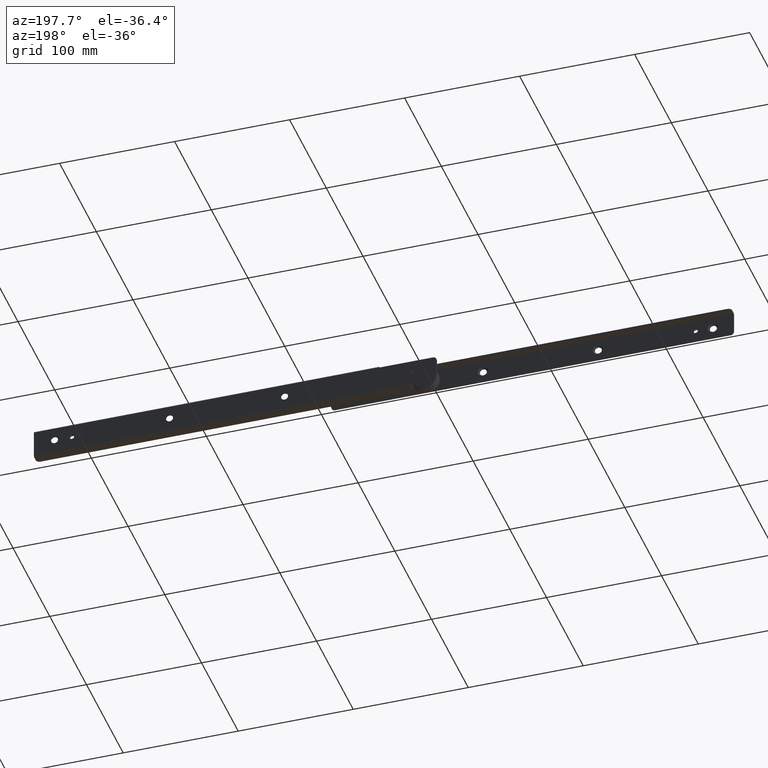
[diagram: clean part render]
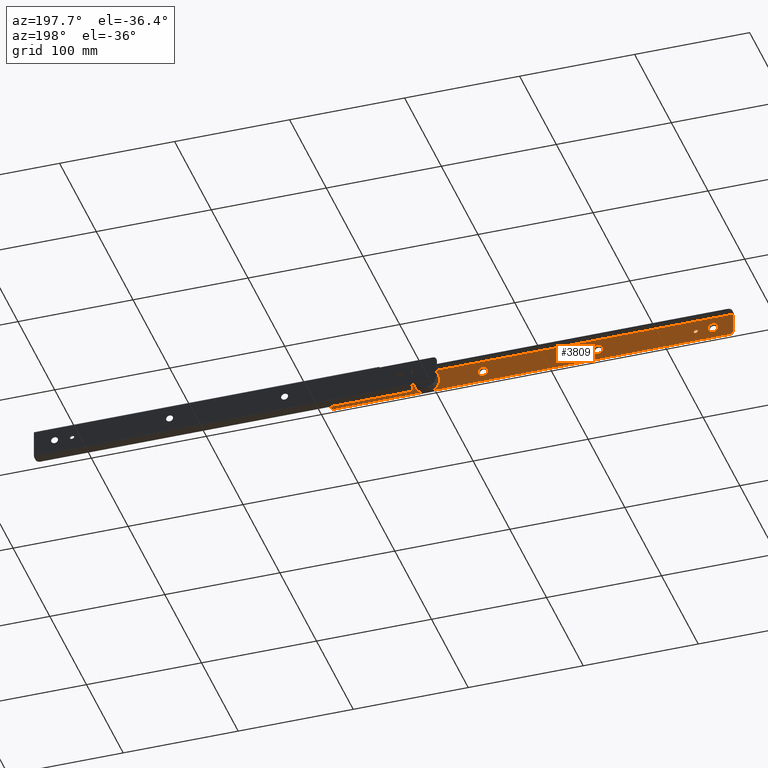
[diagram: same view with one face highlighted and labeled with its STEP entity id]
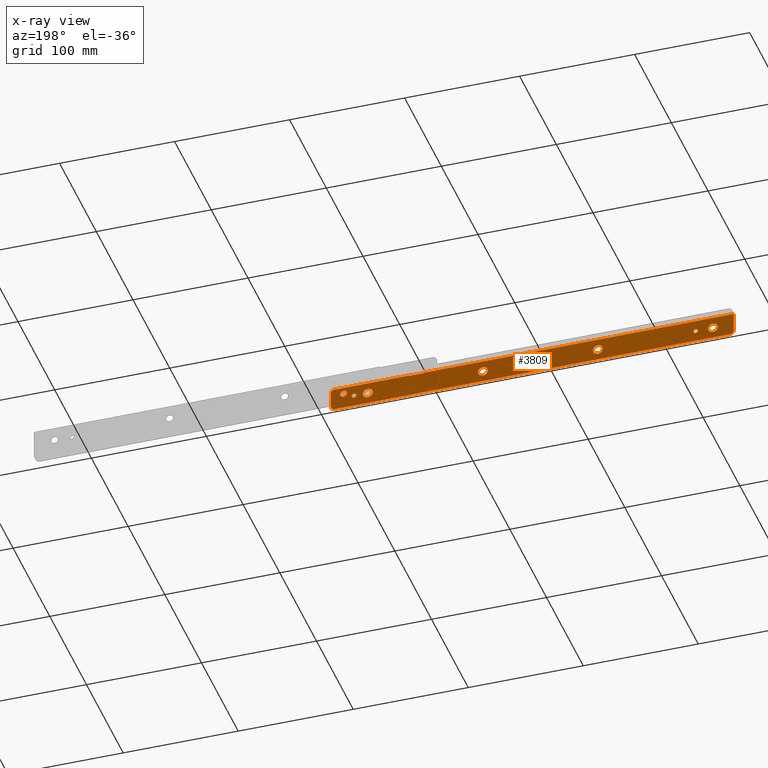
[diagram: x-ray of the same camera — body ghosted, the highlighted face saturated]
A machine part, auxiliary view. The second image highlights one B-rep face of the part: STEP entity #3809.
The next image is the same camera in x-ray: the body ghosted, the highlighted face saturated — about 0% of this face is hidden behind the body in this view.
In plain terms, the highlighted face is a freeform B-spline surface patch.
Its self-contained STEP definition (entity closure, byte-faithful):
#1367=CARTESIAN_POINT('',(63.0,-10.400000000000000,-7.299999999999800));
#1368=VERTEX_POINT('',#1367);
#1369=CARTESIAN_POINT('',(58.713255464305647,-10.399999997810500,-11.262625873852420));
#1370=VERTEX_POINT('',#1369);
#1371=CARTESIAN_POINT('',(63.0,-10.400000000000000,-7.299999999999800));
#1372=CARTESIAN_POINT('',(59.025120912616245,-10.400000000000000,-7.299999999999800));
#1373=CARTESIAN_POINT('',(58.713255464305647,-10.399999997810506,-11.262625873852425));
#1381=(BOUNDED_CURVE()B_SPLINE_CURVE(2,(#1371,#1372,#1373),.UNSPECIFIED.,.F.,.U.)B_SPLINE_CURVE_WITH_KNOTS((3,3),(0.500000000000000,0.736331299482826),.UNSPECIFIED.)CURVE()GEOMETRIC_REPRESENTATION_ITEM()RATIONAL_B_SPLINE_CURVE((1.0,0.723120659952436,0.969723353771976))REPRESENTATION_ITEM(''));
#1382=EDGE_CURVE('',#1368,#1370,#1381,.T.);
#1384=CARTESIAN_POINT('',(67.286744535694353,-10.399999997810500,-11.937374126147180));
#1385=VERTEX_POINT('',#1384);
#1386=CARTESIAN_POINT('',(67.286744535694353,-10.399999997810502,-11.937374126147180));
#1387=CARTESIAN_POINT('',(67.299999999999997,-10.399999999999999,-11.768947474577564));
#1388=CARTESIAN_POINT('',(67.299999999999997,-10.400000000000000,-11.599999999999801));
#1389=CARTESIAN_POINT('',(67.299999999999997,-10.400000000000000,-7.299999999999800));
#1390=CARTESIAN_POINT('',(63.0,-10.400000000000000,-7.299999999999800));
#1398=(BOUNDED_CURVE()B_SPLINE_CURVE(2,(#1386,#1387,#1388,#1389,#1390),.UNSPECIFIED.,.F.,.U.)B_SPLINE_CURVE_WITH_KNOTS((3,2,3),(0.236331299482826,0.250000000000000,0.500000000000000),.UNSPECIFIED.)CURVE()GEOMETRIC_REPRESENTATION_ITEM()RATIONAL_B_SPLINE_CURVE((0.969723353771976,0.983986121234111,1.0,0.707106781186547,1.0))REPRESENTATION_ITEM(''));
#1399=EDGE_CURVE('',#1385,#1368,#1398,.T.);
#1466=CARTESIAN_POINT('',(63.0,-10.400000000000000,-15.899999999999800));
#1467=VERTEX_POINT('',#1466);
#1468=CARTESIAN_POINT('',(58.713255464305654,-10.399999997810502,-11.262625873852425));
#1469=CARTESIAN_POINT('',(58.700000000000003,-10.399999999999999,-11.431052525422032));
#1470=CARTESIAN_POINT('',(58.700000000000003,-10.400000000000000,-11.599999999999801));
#1471=CARTESIAN_POINT('',(58.700000000000003,-10.400000000000000,-15.899999999999794));
#1472=CARTESIAN_POINT('',(63.0,-10.400000000000000,-15.899999999999800));
#1480=(BOUNDED_CURVE()B_SPLINE_CURVE(2,(#1468,#1469,#1470,#1471,#1472),.UNSPECIFIED.,.F.,.U.)B_SPLINE_CURVE_WITH_KNOTS((3,2,3),(0.736331299482826,0.750000000000000,1.0),.UNSPECIFIED.)CURVE()GEOMETRIC_REPRESENTATION_ITEM()RATIONAL_B_SPLINE_CURVE((0.969723353771976,0.983986121234111,1.0,0.707106781186547,1.0))REPRESENTATION_ITEM(''));
#1481=EDGE_CURVE('',#1370,#1467,#1480,.T.);
#1515=CARTESIAN_POINT('',(63.0,-10.400000000000000,-15.899999999999800));
#1516=CARTESIAN_POINT('',(66.974879087383769,-10.400000000000000,-15.899999999999796));
#1517=CARTESIAN_POINT('',(67.286744535694353,-10.399999997810497,-11.937374126147173));
#1525=(BOUNDED_CURVE()B_SPLINE_CURVE(2,(#1515,#1516,#1517),.UNSPECIFIED.,.F.,.U.)B_SPLINE_CURVE_WITH_KNOTS((3,3),(0.0,0.236331299482825),.UNSPECIFIED.)CURVE()GEOMETRIC_REPRESENTATION_ITEM()RATIONAL_B_SPLINE_CURVE((1.0,0.723120659952437,0.969723353771975))REPRESENTATION_ITEM(''));
#1526=EDGE_CURVE('',#1467,#1385,#1525,.T.);
#1549=CARTESIAN_POINT('',(-37.0,-10.400000000000000,-7.299999999999800));
#1550=VERTEX_POINT('',#1549);
#1551=CARTESIAN_POINT('',(-41.286744535694353,-10.399999997810500,-11.262625873852420));
#1552=VERTEX_POINT('',#1551);
#1553=CARTESIAN_POINT('',(-37.0,-10.400000000000000,-7.299999999999800));
#1554=CARTESIAN_POINT('',(-40.974879087383748,-10.400000000000000,-7.299999999999800));
#1555=CARTESIAN_POINT('',(-41.286744535694353,-10.399999997810506,-11.262625873852425));
#1563=(BOUNDED_CURVE()B_SPLINE_CURVE(2,(#1553,#1554,#1555),.UNSPECIFIED.,.F.,.U.)B_SPLINE_CURVE_WITH_KNOTS((3,3),(0.500000000000000,0.736331299482826),.UNSPECIFIED.)CURVE()GEOMETRIC_REPRESENTATION_ITEM()RATIONAL_B_SPLINE_CURVE((1.0,0.723120659952436,0.969723353771976))REPRESENTATION_ITEM(''));
#1564=EDGE_CURVE('',#1550,#1552,#1563,.T.);
#1566=CARTESIAN_POINT('',(-32.713255464305647,-10.399999997810500,-11.937374126147180));
#1567=VERTEX_POINT('',#1566);
#1568=CARTESIAN_POINT('',(-32.713255464305647,-10.399999997810502,-11.937374126147180));
#1569=CARTESIAN_POINT('',(-32.700000000000003,-10.399999999999999,-11.768947474577564));
#1570=CARTESIAN_POINT('',(-32.700000000000003,-10.400000000000000,-11.599999999999801));
#1571=CARTESIAN_POINT('',(-32.700000000000017,-10.400000000000000,-7.299999999999800));
#1572=CARTESIAN_POINT('',(-37.0,-10.400000000000000,-7.299999999999800));
#1580=(BOUNDED_CURVE()B_SPLINE_CURVE(2,(#1568,#1569,#1570,#1571,#1572),.UNSPECIFIED.,.F.,.U.)B_SPLINE_CURVE_WITH_KNOTS((3,2,3),(0.236331299482826,0.250000000000000,0.500000000000000),.UNSPECIFIED.)CURVE()GEOMETRIC_REPRESENTATION_ITEM()RATIONAL_B_SPLINE_CURVE((0.969723353771976,0.983986121234111,1.0,0.707106781186547,1.0))REPRESENTATION_ITEM(''));
#1581=EDGE_CURVE('',#1567,#1550,#1580,.T.);
#1648=CARTESIAN_POINT('',(-37.0,-10.400000000000000,-15.899999999999800));
#1649=VERTEX_POINT('',#1648);
#1650=CARTESIAN_POINT('',(-41.286744535694346,-10.399999997810502,-11.262625873852425));
#1651=CARTESIAN_POINT('',(-41.300000000000004,-10.399999999999999,-11.431052525422032));
#1652=CARTESIAN_POINT('',(-41.299999999999997,-10.400000000000000,-11.599999999999801));
#1653=CARTESIAN_POINT('',(-41.299999999999997,-10.400000000000000,-15.899999999999794));
#1654=CARTESIAN_POINT('',(-37.0,-10.400000000000000,-15.899999999999800));
#1662=(BOUNDED_CURVE()B_SPLINE_CURVE(2,(#1650,#1651,#1652,#1653,#1654),.UNSPECIFIED.,.F.,.U.)B_SPLINE_CURVE_WITH_KNOTS((3,2,3),(0.736331299482826,0.750000000000000,1.0),.UNSPECIFIED.)CURVE()GEOMETRIC_REPRESENTATION_ITEM()RATIONAL_B_SPLINE_CURVE((0.969723353771976,0.983986121234111,1.0,0.707106781186547,1.0))REPRESENTATION_ITEM(''));
#1663=EDGE_CURVE('',#1552,#1649,#1662,.T.);
#1697=CARTESIAN_POINT('',(-37.0,-10.400000000000000,-15.899999999999800));
#1698=CARTESIAN_POINT('',(-33.025120912616252,-10.400000000000000,-15.899999999999796));
#1699=CARTESIAN_POINT('',(-32.713255464305647,-10.399999997810497,-11.937374126147173));
#1707=(BOUNDED_CURVE()B_SPLINE_CURVE(2,(#1697,#1698,#1699),.UNSPECIFIED.,.F.,.U.)B_SPLINE_CURVE_WITH_KNOTS((3,3),(0.0,0.236331299482825),.UNSPECIFIED.)CURVE()GEOMETRIC_REPRESENTATION_ITEM()RATIONAL_B_SPLINE_CURVE((1.0,0.723120659952437,0.969723353771975))REPRESENTATION_ITEM(''));
#1708=EDGE_CURVE('',#1649,#1567,#1707,.T.);
#1731=CARTESIAN_POINT('',(-137.0,-10.400000000000000,-7.299999999999800));
#1732=VERTEX_POINT('',#1731);
#1733=CARTESIAN_POINT('',(-141.286744535694400,-10.399999997810490,-11.262625873852420));
#1734=VERTEX_POINT('',#1733);
#1735=CARTESIAN_POINT('',(-137.0,-10.400000000000000,-7.299999999999800));
#1736=CARTESIAN_POINT('',(-140.974879087383810,-10.400000000000000,-7.299999999999800));
#1737=CARTESIAN_POINT('',(-141.286744535694370,-10.399999997810495,-11.262625873852425));
#1745=(BOUNDED_CURVE()B_SPLINE_CURVE(2,(#1735,#1736,#1737),.UNSPECIFIED.,.F.,.U.)B_SPLINE_CURVE_WITH_KNOTS((3,3),(0.500000000000000,0.736331299482826),.UNSPECIFIED.)CURVE()GEOMETRIC_REPRESENTATION_ITEM()RATIONAL_B_SPLINE_CURVE((1.0,0.723120659952436,0.969723353771976))REPRESENTATION_ITEM(''));
#1746=EDGE_CURVE('',#1732,#1734,#1745,.T.);
#1748=CARTESIAN_POINT('',(-132.713255464305690,-10.399999997810500,-11.937374126147169));
#1749=VERTEX_POINT('',#1748);
#1750=CARTESIAN_POINT('',(-132.713255464305660,-10.399999997810500,-11.937374126147176));
#1751=CARTESIAN_POINT('',(-132.699999999999990,-10.399999999999997,-11.768947474577564));
#1752=CARTESIAN_POINT('',(-132.699999999999990,-10.400000000000000,-11.599999999999801));
#1753=CARTESIAN_POINT('',(-132.700000000000020,-10.400000000000000,-7.299999999999800));
#1754=CARTESIAN_POINT('',(-137.0,-10.400000000000000,-7.299999999999800));
#1762=(BOUNDED_CURVE()B_SPLINE_CURVE(2,(#1750,#1751,#1752,#1753,#1754),.UNSPECIFIED.,.F.,.U.)B_SPLINE_CURVE_WITH_KNOTS((3,2,3),(0.236331299482826,0.250000000000000,0.500000000000000),.UNSPECIFIED.)CURVE()GEOMETRIC_REPRESENTATION_ITEM()RATIONAL_B_SPLINE_CURVE((0.969723353771976,0.983986121234111,1.0,0.707106781186547,1.0))REPRESENTATION_ITEM(''));
#1763=EDGE_CURVE('',#1749,#1732,#1762,.T.);
#1830=CARTESIAN_POINT('',(-137.0,-10.400000000000000,-15.899999999999800));
#1831=VERTEX_POINT('',#1830);
#1832=CARTESIAN_POINT('',(-141.286744535694340,-10.399999997810497,-11.262625873852418));
#1833=CARTESIAN_POINT('',(-141.299999999999980,-10.400000000000000,-11.431052525422034));
#1834=CARTESIAN_POINT('',(-141.300000000000010,-10.400000000000000,-11.599999999999801));
#1835=CARTESIAN_POINT('',(-141.300000000000010,-10.400000000000000,-15.899999999999794));
#1836=CARTESIAN_POINT('',(-137.0,-10.400000000000000,-15.899999999999800));
#1844=(BOUNDED_CURVE()B_SPLINE_CURVE(2,(#1832,#1833,#1834,#1835,#1836),.UNSPECIFIED.,.F.,.U.)B_SPLINE_CURVE_WITH_KNOTS((3,2,3),(0.736331299482825,0.750000000000000,1.0),.UNSPECIFIED.)CURVE()GEOMETRIC_REPRESENTATION_ITEM()RATIONAL_B_SPLINE_CURVE((0.969723353771975,0.983986121234110,1.0,0.707106781186547,1.0))REPRESENTATION_ITEM(''));
#1845=EDGE_CURVE('',#1734,#1831,#1844,.T.);
#1879=CARTESIAN_POINT('',(-137.0,-10.400000000000000,-15.899999999999800));
#1880=CARTESIAN_POINT('',(-133.025120912616270,-10.400000000000000,-15.899999999999800));
#1881=CARTESIAN_POINT('',(-132.713255464305720,-10.399999997810502,-11.937374126147169));
#1889=(BOUNDED_CURVE()B_SPLINE_CURVE(2,(#1879,#1880,#1881),.UNSPECIFIED.,.F.,.U.)B_SPLINE_CURVE_WITH_KNOTS((3,3),(0.0,0.236331299482826),.UNSPECIFIED.)CURVE()GEOMETRIC_REPRESENTATION_ITEM()RATIONAL_B_SPLINE_CURVE((1.0,0.723120659952437,0.969723353771976))REPRESENTATION_ITEM(''));
#1890=EDGE_CURVE('',#1831,#1749,#1889,.T.);
#1913=CARTESIAN_POINT('',(-237.0,-10.400000000000000,-7.299999999999800));
#1914=VERTEX_POINT('',#1913);
#1915=CARTESIAN_POINT('',(-241.286744535694310,-10.399999997810500,-11.262625873852430));
#1916=VERTEX_POINT('',#1915);
#1917=CARTESIAN_POINT('',(-237.0,-10.400000000000000,-7.299999999999800));
#1918=CARTESIAN_POINT('',(-240.974879087383750,-10.400000000000000,-7.299999999999800));
#1919=CARTESIAN_POINT('',(-241.286744535694310,-10.399999997810506,-11.262625873852425));
#1927=(BOUNDED_CURVE()B_SPLINE_CURVE(2,(#1917,#1918,#1919),.UNSPECIFIED.,.F.,.U.)B_SPLINE_CURVE_WITH_KNOTS((3,3),(0.500000000000000,0.736331299482826),.UNSPECIFIED.)CURVE()GEOMETRIC_REPRESENTATION_ITEM()RATIONAL_B_SPLINE_CURVE((1.0,0.723120659952436,0.969723353771976))REPRESENTATION_ITEM(''));
#1928=EDGE_CURVE('',#1914,#1916,#1927,.T.);
#1930=CARTESIAN_POINT('',(-232.713255464305600,-10.399999997810500,-11.937374126147169));
#1931=VERTEX_POINT('',#1930);
#1932=CARTESIAN_POINT('',(-232.713255464305630,-10.399999997810502,-11.937374126147169));
#1933=CARTESIAN_POINT('',(-232.700000000000020,-10.399999999999997,-11.768947474577564));
#1934=CARTESIAN_POINT('',(-232.699999999999990,-10.400000000000000,-11.599999999999801));
#1935=CARTESIAN_POINT('',(-232.700000000000020,-10.400000000000000,-7.299999999999800));
#1936=CARTESIAN_POINT('',(-237.0,-10.400000000000000,-7.299999999999800));
#1944=(BOUNDED_CURVE()B_SPLINE_CURVE(2,(#1932,#1933,#1934,#1935,#1936),.UNSPECIFIED.,.F.,.U.)B_SPLINE_CURVE_WITH_KNOTS((3,2,3),(0.236331299482826,0.250000000000000,0.500000000000000),.UNSPECIFIED.)CURVE()GEOMETRIC_REPRESENTATION_ITEM()RATIONAL_B_SPLINE_CURVE((0.969723353771976,0.983986121234111,1.0,0.707106781186547,1.0))REPRESENTATION_ITEM(''));
#1945=EDGE_CURVE('',#1931,#1914,#1944,.T.);
#2012=CARTESIAN_POINT('',(-237.0,-10.400000000000000,-15.899999999999800));
#2013=VERTEX_POINT('',#2012);
#2014=CARTESIAN_POINT('',(-241.286744535694370,-10.399999997810500,-11.262625873852421));
#2015=CARTESIAN_POINT('',(-241.299999999999980,-10.399999999999997,-11.431052525422031));
#2016=CARTESIAN_POINT('',(-241.300000000000010,-10.400000000000000,-11.599999999999801));
#2017=CARTESIAN_POINT('',(-241.299999999999980,-10.400000000000000,-15.899999999999794));
#2018=CARTESIAN_POINT('',(-237.0,-10.400000000000000,-15.899999999999800));
#2026=(BOUNDED_CURVE()B_SPLINE_CURVE(2,(#2014,#2015,#2016,#2017,#2018),.UNSPECIFIED.,.F.,.U.)B_SPLINE_CURVE_WITH_KNOTS((3,2,3),(0.736331299482826,0.750000000000000,1.0),.UNSPECIFIED.)CURVE()GEOMETRIC_REPRESENTATION_ITEM()RATIONAL_B_SPLINE_CURVE((0.969723353771976,0.983986121234111,1.0,0.707106781186547,1.0))REPRESENTATION_ITEM(''));
#2027=EDGE_CURVE('',#1916,#2013,#2026,.T.);
#2061=CARTESIAN_POINT('',(-237.0,-10.400000000000000,-15.899999999999800));
#2062=CARTESIAN_POINT('',(-233.025120912616190,-10.400000000000000,-15.899999999999800));
#2063=CARTESIAN_POINT('',(-232.713255464305660,-10.399999997810502,-11.937374126147169));
#2071=(BOUNDED_CURVE()B_SPLINE_CURVE(2,(#2061,#2062,#2063),.UNSPECIFIED.,.F.,.U.)B_SPLINE_CURVE_WITH_KNOTS((3,3),(0.0,0.236331299482826),.UNSPECIFIED.)CURVE()GEOMETRIC_REPRESENTATION_ITEM()RATIONAL_B_SPLINE_CURVE((1.0,0.723120659952437,0.969723353771976))REPRESENTATION_ITEM(''));
#2072=EDGE_CURVE('',#2013,#1931,#2071,.T.);
#2099=CARTESIAN_POINT('',(81.070621898061887,-10.400000000000000,-7.251799000740224));
#2100=VERTEX_POINT('',#2099);
#2101=CARTESIAN_POINT('',(84.0,-10.400000000000000,-10.549999999999800));
#2102=VERTEX_POINT('',#2101);
#2103=CARTESIAN_POINT('',(81.070621898061887,-10.400000000000000,-7.251799000740224));
#2104=CARTESIAN_POINT('',(81.050000000000011,-10.400000000000002,-7.425288839930290));
#2105=CARTESIAN_POINT('',(81.050000000000011,-10.400000000000000,-7.599999999999800));
#2106=CARTESIAN_POINT('',(81.050000000000011,-10.400000000000000,-10.549999999999802));
#2107=CARTESIAN_POINT('',(84.0,-10.400000000000000,-10.549999999999800));
#2115=(BOUNDED_CURVE()B_SPLINE_CURVE(2,(#2103,#2104,#2105,#2106,#2107),.UNSPECIFIED.,.F.,.U.)B_SPLINE_CURVE_WITH_KNOTS((3,2,3),(0.729562472705394,0.750000000000000,1.0),.UNSPECIFIED.)CURVE()GEOMETRIC_REPRESENTATION_ITEM()RATIONAL_B_SPLINE_CURVE((0.956026752599763,0.976055947384381,1.0,0.707106781186548,1.0))REPRESENTATION_ITEM(''));
#2116=EDGE_CURVE('',#2100,#2102,#2115,.T.);
#2157=CARTESIAN_POINT('',(86.944497655040465,-10.400000000000000,-7.780093196598655));
#2158=VERTEX_POINT('',#2157);
#2164=CARTESIAN_POINT('',(84.0,-10.400000000000000,-10.549999999999800));
#2165=CARTESIAN_POINT('',(86.775082887984269,-10.400000000000000,-10.549999999999800));
#2166=CARTESIAN_POINT('',(86.944497655040465,-10.400000000000007,-7.780093196598655));
#2174=(BOUNDED_CURVE()B_SPLINE_CURVE(2,(#2164,#2165,#2166),.UNSPECIFIED.,.F.,.U.)B_SPLINE_CURVE_WITH_KNOTS((3,3),(0.0,0.239332961659366),.UNSPECIFIED.)CURVE()GEOMETRIC_REPRESENTATION_ITEM()RATIONAL_B_SPLINE_CURVE((1.0,0.719603993965726,0.976072040424575))REPRESENTATION_ITEM(''));
#2175=EDGE_CURVE('',#2102,#2158,#2174,.T.);
#2198=CARTESIAN_POINT('',(84.0,-10.400000000000000,-4.649999999999801));
#2199=VERTEX_POINT('',#2198);
#2200=CARTESIAN_POINT('',(84.0,-10.400000000000000,-4.649999999999801));
#2201=CARTESIAN_POINT('',(81.379885161093497,-10.400000000000000,-4.649999999999800));
#2202=CARTESIAN_POINT('',(81.070621898061887,-10.400000000000000,-7.251799000740224));
#2210=(BOUNDED_CURVE()B_SPLINE_CURVE(2,(#2200,#2201,#2202),.UNSPECIFIED.,.F.,.U.)B_SPLINE_CURVE_WITH_KNOTS((3,3),(0.500000000000000,0.729562472705394),.UNSPECIFIED.)CURVE()GEOMETRIC_REPRESENTATION_ITEM()RATIONAL_B_SPLINE_CURVE((1.0,0.731050833802168,0.956026752599761))REPRESENTATION_ITEM(''));
#2211=EDGE_CURVE('',#2199,#2100,#2210,.T.);
#2213=CARTESIAN_POINT('',(86.944497655040465,-10.400000000000006,-7.780093196598655));
#2214=CARTESIAN_POINT('',(86.950000000000003,-10.400000000000006,-7.690130656715602));
#2215=CARTESIAN_POINT('',(86.950000000000003,-10.400000000000000,-7.599999999999800));
#2216=CARTESIAN_POINT('',(86.950000000000003,-10.400000000000000,-4.649999999999801));
#2217=CARTESIAN_POINT('',(84.0,-10.400000000000000,-4.649999999999801));
#2225=(BOUNDED_CURVE()B_SPLINE_CURVE(2,(#2213,#2214,#2215,#2216,#2217),.UNSPECIFIED.,.F.,.U.)B_SPLINE_CURVE_WITH_KNOTS((3,2,3),(0.239332961659367,0.250000000000000,0.500000000000000),.UNSPECIFIED.)CURVE()GEOMETRIC_REPRESENTATION_ITEM()RATIONAL_B_SPLINE_CURVE((0.976072040424575,0.987502787220822,1.0,0.707106781186548,1.0))REPRESENTATION_ITEM(''));
#2226=EDGE_CURVE('',#2158,#2199,#2225,.T.);
#2285=CARTESIAN_POINT('',(73.013980948035339,-10.400000000000000,-11.363931524269979));
#2286=VERTEX_POINT('',#2285);
#2287=CARTESIAN_POINT('',(75.0,-10.400000000000000,-13.599999999999801));
#2288=VERTEX_POINT('',#2287);
#2289=CARTESIAN_POINT('',(73.013980948035339,-10.399999999999999,-11.363931524269974));
#2290=CARTESIAN_POINT('',(73.0,-10.400000000000000,-11.481551754211837));
#2291=CARTESIAN_POINT('',(73.0,-10.400000000000000,-11.599999999999801));
#2292=CARTESIAN_POINT('',(72.999999999999986,-10.400000000000000,-13.599999999999799));
#2293=CARTESIAN_POINT('',(75.0,-10.400000000000000,-13.599999999999801));
#2301=(BOUNDED_CURVE()B_SPLINE_CURVE(2,(#2289,#2290,#2291,#2292,#2293),.UNSPECIFIED.,.F.,.U.)B_SPLINE_CURVE_WITH_KNOTS((3,2,3),(0.729562472423634,0.750000000000000,1.0),.UNSPECIFIED.)CURVE()GEOMETRIC_REPRESENTATION_ITEM()RATIONAL_B_SPLINE_CURVE((0.956026752047501,0.976055947054278,1.0,0.707106781186548,1.0))REPRESENTATION_ITEM(''));
#2302=EDGE_CURVE('',#2286,#2288,#2301,.T.);
#2343=CARTESIAN_POINT('',(76.996269596842609,-10.400000000000000,-11.722097079087931));
#2344=VERTEX_POINT('',#2343);
#2350=CARTESIAN_POINT('',(75.0,-10.400000000000000,-13.599999999999801));
#2351=CARTESIAN_POINT('',(76.881412133776607,-10.400000000000000,-13.599999999999801));
#2352=CARTESIAN_POINT('',(76.996269596842609,-10.400000000000004,-11.722097079087932));
#2360=(BOUNDED_CURVE()B_SPLINE_CURVE(2,(#2350,#2351,#2352),.UNSPECIFIED.,.F.,.U.)B_SPLINE_CURVE_WITH_KNOTS((3,3),(0.0,0.239332962238784),.UNSPECIFIED.)CURVE()GEOMETRIC_REPRESENTATION_ITEM()RATIONAL_B_SPLINE_CURVE((1.0,0.719603993286896,0.976072041666378))REPRESENTATION_ITEM(''));
#2361=EDGE_CURVE('',#2288,#2344,#2360,.T.);
#2384=CARTESIAN_POINT('',(75.0,-10.400000000000000,-9.599999999999799));
#2385=VERTEX_POINT('',#2384);
#2386=CARTESIAN_POINT('',(75.0,-10.400000000000000,-9.599999999999799));
#2387=CARTESIAN_POINT('',(73.223650959655899,-10.400000000000000,-9.599999999999799));
#2388=CARTESIAN_POINT('',(73.013980948035339,-10.400000000000000,-11.363931524269972));
#2396=(BOUNDED_CURVE()B_SPLINE_CURVE(2,(#2386,#2387,#2388),.UNSPECIFIED.,.F.,.U.)B_SPLINE_CURVE_WITH_KNOTS((3,3),(0.500000000000000,0.729562472423634),.UNSPECIFIED.)CURVE()GEOMETRIC_REPRESENTATION_ITEM()RATIONAL_B_SPLINE_CURVE((1.0,0.731050834132269,0.956026752047502))REPRESENTATION_ITEM(''));
#2397=EDGE_CURVE('',#2385,#2286,#2396,.T.);
#2399=CARTESIAN_POINT('',(76.996269596842609,-10.400000000000000,-11.722097079087931));
#2400=CARTESIAN_POINT('',(77.0,-10.400000000000004,-11.661105526615449));
#2401=CARTESIAN_POINT('',(77.0,-10.400000000000000,-11.599999999999801));
#2402=CARTESIAN_POINT('',(77.000000000000014,-10.400000000000000,-9.599999999999799));
#2403=CARTESIAN_POINT('',(75.0,-10.400000000000000,-9.599999999999799));
#2411=(BOUNDED_CURVE()B_SPLINE_CURVE(2,(#2399,#2400,#2401,#2402,#2403),.UNSPECIFIED.,.F.,.U.)B_SPLINE_CURVE_WITH_KNOTS((3,2,3),(0.239332962238784,0.250000000000000,0.500000000000000),.UNSPECIFIED.)CURVE()GEOMETRIC_REPRESENTATION_ITEM()RATIONAL_B_SPLINE_CURVE((0.976072041666378,0.987502787899652,1.0,0.707106781186548,1.0))REPRESENTATION_ITEM(''));
#2412=EDGE_CURVE('',#2344,#2385,#2411,.T.);
#2471=CARTESIAN_POINT('',(-223.986019051964690,-10.400000000000000,-11.363931524269979));
#2472=VERTEX_POINT('',#2471);
#2473=CARTESIAN_POINT('',(-222.0,-10.400000000000000,-13.599999999999801));
#2474=VERTEX_POINT('',#2473);
#2475=CARTESIAN_POINT('',(-223.986019051964690,-10.399999999999999,-11.363931524269974));
#2476=CARTESIAN_POINT('',(-223.999999999999970,-10.400000000000000,-11.481551754211836));
#2477=CARTESIAN_POINT('',(-224.0,-10.400000000000000,-11.599999999999801));
#2478=CARTESIAN_POINT('',(-224.000000000000060,-10.400000000000000,-13.599999999999799));
#2479=CARTESIAN_POINT('',(-222.0,-10.400000000000000,-13.599999999999801));
#2487=(BOUNDED_CURVE()B_SPLINE_CURVE(2,(#2475,#2476,#2477,#2478,#2479),.UNSPECIFIED.,.F.,.U.)B_SPLINE_CURVE_WITH_KNOTS((3,2,3),(0.729562472423634,0.750000000000000,1.0),.UNSPECIFIED.)CURVE()GEOMETRIC_REPRESENTATION_ITEM()RATIONAL_B_SPLINE_CURVE((0.956026752047501,0.976055947054278,1.0,0.707106781186548,1.0))REPRESENTATION_ITEM(''));
#2488=EDGE_CURVE('',#2472,#2474,#2487,.T.);
#2529=CARTESIAN_POINT('',(-220.003730403157390,-10.400000000000000,-11.722097079087931));
#2530=VERTEX_POINT('',#2529);
#2536=CARTESIAN_POINT('',(-222.0,-10.400000000000000,-13.599999999999801));
#2537=CARTESIAN_POINT('',(-220.118587866223410,-10.400000000000000,-13.599999999999801));
#2538=CARTESIAN_POINT('',(-220.003730403157390,-10.400000000000006,-11.722097079087934));
#2546=(BOUNDED_CURVE()B_SPLINE_CURVE(2,(#2536,#2537,#2538),.UNSPECIFIED.,.F.,.U.)B_SPLINE_CURVE_WITH_KNOTS((3,3),(0.0,0.239332962238785),.UNSPECIFIED.)CURVE()GEOMETRIC_REPRESENTATION_ITEM()RATIONAL_B_SPLINE_CURVE((1.0,0.719603993286896,0.976072041666378))REPRESENTATION_ITEM(''));
#2547=EDGE_CURVE('',#2474,#2530,#2546,.T.);
#2570=CARTESIAN_POINT('',(-222.0,-10.400000000000000,-9.599999999999799));
#2571=VERTEX_POINT('',#2570);
#2572=CARTESIAN_POINT('',(-222.0,-10.400000000000000,-9.599999999999799));
#2573=CARTESIAN_POINT('',(-223.776349040344140,-10.400000000000000,-9.599999999999799));
#2574=CARTESIAN_POINT('',(-223.986019051964690,-10.400000000000000,-11.363931524269972));
#2582=(BOUNDED_CURVE()B_SPLINE_CURVE(2,(#2572,#2573,#2574),.UNSPECIFIED.,.F.,.U.)B_SPLINE_CURVE_WITH_KNOTS((3,3),(0.500000000000000,0.729562472423634),.UNSPECIFIED.)CURVE()GEOMETRIC_REPRESENTATION_ITEM()RATIONAL_B_SPLINE_CURVE((1.0,0.731050834132269,0.956026752047502))REPRESENTATION_ITEM(''));
#2583=EDGE_CURVE('',#2571,#2472,#2582,.T.);
#2585=CARTESIAN_POINT('',(-220.003730403157360,-10.399999999999999,-11.722097079087927));
#2586=CARTESIAN_POINT('',(-220.000000000000030,-10.400000000000004,-11.661105526615449));
#2587=CARTESIAN_POINT('',(-220.0,-10.400000000000000,-11.599999999999801));
#2588=CARTESIAN_POINT('',(-220.000000000000030,-10.400000000000000,-9.599999999999799));
#2589=CARTESIAN_POINT('',(-222.0,-10.400000000000000,-9.599999999999799));
#2597=(BOUNDED_CURVE()B_SPLINE_CURVE(2,(#2585,#2586,#2587,#2588,#2589),.UNSPECIFIED.,.F.,.U.)B_SPLINE_CURVE_WITH_KNOTS((3,2,3),(0.239332962238784,0.250000000000000,0.500000000000000),.UNSPECIFIED.)CURVE()GEOMETRIC_REPRESENTATION_ITEM()RATIONAL_B_SPLINE_CURVE((0.976072041666378,0.987502787899652,1.0,0.707106781186548,1.0))REPRESENTATION_ITEM(''));
#2598=EDGE_CURVE('',#2530,#2571,#2597,.T.);
#3052=CARTESIAN_POINT('',(28.0,-10.400000000000000,-1.999999999999800));
#3053=VERTEX_POINT('',#3052);
#3054=CARTESIAN_POINT('',(14.0,-10.400000000000000,-1.999999999999800));
#3055=VERTEX_POINT('',#3054);
#3056=CARTESIAN_POINT('',(28.0,-10.400000000000000,-1.999999999999800));
#3057=CARTESIAN_POINT('',(14.0,-10.400000000000000,-1.999999999999800));
#3058=QUASI_UNIFORM_CURVE('',1,(#3056,#3057),.UNSPECIFIED.,.F.,.U.);
#3059=EDGE_CURVE('',#3053,#3055,#3058,.T.);
#3114=CARTESIAN_POINT('',(92.0,-10.400000000000000,-21.600000000000001));
#3115=VERTEX_POINT('',#3114);
#3121=CARTESIAN_POINT('',(95.0,-10.400000000000000,-18.600000000000001));
#3122=VERTEX_POINT('',#3121);
#3123=CARTESIAN_POINT('',(95.0,-10.400000000000000,-18.600000000000001));
#3124=CARTESIAN_POINT('',(95.000000000000014,-10.400000000000000,-21.600000000000005));
#3125=CARTESIAN_POINT('',(92.0,-10.400000000000000,-21.600000000000001));
#3133=(BOUNDED_CURVE()B_SPLINE_CURVE(2,(#3123,#3124,#3125),.UNSPECIFIED.,.F.,.U.)CURVE()GEOMETRIC_REPRESENTATION_ITEM()QUASI_UNIFORM_CURVE()RATIONAL_B_SPLINE_CURVE((1.0,0.707106781186548,1.0))REPRESENTATION_ITEM(''));
#3134=EDGE_CURVE('',#3122,#3115,#3133,.T.);
#3158=CARTESIAN_POINT('',(92.0,-10.400000000000000,-1.599999999999795));
#3159=VERTEX_POINT('',#3158);
#3160=CARTESIAN_POINT('',(95.0,-10.400000000000000,-4.599999999999800));
#3161=VERTEX_POINT('',#3160);
#3162=CARTESIAN_POINT('',(92.0,-10.400000000000000,-1.599999999999800));
#3163=CARTESIAN_POINT('',(95.000000000000014,-10.400000000000000,-1.599999999999799));
#3164=CARTESIAN_POINT('',(95.0,-10.400000000000000,-4.599999999999800));
#3172=(BOUNDED_CURVE()B_SPLINE_CURVE(2,(#3162,#3163,#3164),.UNSPECIFIED.,.F.,.U.)CURVE()GEOMETRIC_REPRESENTATION_ITEM()QUASI_UNIFORM_CURVE()RATIONAL_B_SPLINE_CURVE((1.0,0.707106781186548,1.0))REPRESENTATION_ITEM(''));
#3173=EDGE_CURVE('',#3159,#3161,#3172,.T.);
#3358=CARTESIAN_POINT('',(-255.0,-10.400000000000000,-18.600000000000001));
#3359=VERTEX_POINT('',#3358);
#3365=CARTESIAN_POINT('',(-252.0,-10.400000000000000,-21.600000000000001));
#3366=VERTEX_POINT('',#3365);
#3367=CARTESIAN_POINT('',(-252.0,-10.400000000000000,-21.600000000000001));
#3368=CARTESIAN_POINT('',(-254.999999999999940,-10.400000000000000,-21.600000000000005));
#3369=CARTESIAN_POINT('',(-255.0,-10.400000000000000,-18.600000000000001));
#3377=(BOUNDED_CURVE()B_SPLINE_CURVE(2,(#3367,#3368,#3369),.UNSPECIFIED.,.F.,.U.)CURVE()GEOMETRIC_REPRESENTATION_ITEM()QUASI_UNIFORM_CURVE()RATIONAL_B_SPLINE_CURVE((1.0,0.707106781186548,1.0))REPRESENTATION_ITEM(''));
#3378=EDGE_CURVE('',#3366,#3359,#3377,.T.);
#3401=CARTESIAN_POINT('',(73.0,-10.400000000000000,-1.599999999999795));
#3402=VERTEX_POINT('',#3401);
#3403=CARTESIAN_POINT('',(92.0,-10.400000000000000,-1.599999999999795));
#3404=CARTESIAN_POINT('',(73.0,-10.400000000000000,-1.599999999999795));
#3405=QUASI_UNIFORM_CURVE('',1,(#3403,#3404),.UNSPECIFIED.,.F.,.U.);
#3406=EDGE_CURVE('',#3159,#3402,#3405,.T.);
#3456=CARTESIAN_POINT('',(-255.0,-10.400000000000000,-1.599999999999795));
#3457=VERTEX_POINT('',#3456);
#3458=CARTESIAN_POINT('',(-255.0,-10.400000000000000,-18.600000000000001));
#3459=CARTESIAN_POINT('',(-255.0,-10.400000000000000,-1.599999999999795));
#3460=QUASI_UNIFORM_CURVE('',1,(#3458,#3459),.UNSPECIFIED.,.F.,.U.);
#3461=EDGE_CURVE('',#3359,#3457,#3460,.T.);
#3505=CARTESIAN_POINT('',(95.0,-10.400000000000000,-18.600000000000001));
#3506=CARTESIAN_POINT('',(95.0,-10.400000000000000,-4.599999999999800));
#3507=QUASI_UNIFORM_CURVE('',1,(#3505,#3506),.UNSPECIFIED.,.F.,.U.);
#3508=EDGE_CURVE('',#3122,#3161,#3507,.T.);
#3525=CARTESIAN_POINT('',(92.0,-10.400000000000000,-21.600000000000001));
#3526=CARTESIAN_POINT('',(-252.0,-10.400000000000000,-21.600000000000001));
#3527=QUASI_UNIFORM_CURVE('',1,(#3525,#3526),.UNSPECIFIED.,.F.,.U.);
#3528=EDGE_CURVE('',#3115,#3366,#3527,.T.);
#3701=CARTESIAN_POINT('',(28.0,-10.400000000000000,-1.599999999999795));
#3702=VERTEX_POINT('',#3701);
#3703=CARTESIAN_POINT('',(73.0,-10.400000000000000,-1.599999999999795));
#3704=CARTESIAN_POINT('',(28.0,-10.400000000000000,-1.599999999999795));
#3705=QUASI_UNIFORM_CURVE('',1,(#3703,#3704),.UNSPECIFIED.,.F.,.U.);
#3706=EDGE_CURVE('',#3402,#3702,#3705,.T.);
#3721=CARTESIAN_POINT('',(14.0,-10.400000000000000,-1.599999999999795));
#3722=VERTEX_POINT('',#3721);
#3728=CARTESIAN_POINT('',(14.0,-10.400000000000000,-1.599999999999795));
#3729=CARTESIAN_POINT('',(-255.0,-10.400000000000000,-1.599999999999795));
#3730=QUASI_UNIFORM_CURVE('',1,(#3728,#3729),.UNSPECIFIED.,.F.,.U.);
#3731=EDGE_CURVE('',#3722,#3457,#3730,.T.);
#3740=CARTESIAN_POINT('',(-272.482499321632080,-10.400000000000000,-0.601000038763665));
#3741=CARTESIAN_POINT('',(-272.482499321632080,-10.400000000000000,-22.599000497677942));
#3742=CARTESIAN_POINT('',(112.482508709363600,-10.400000000000000,-0.601000038763665));
#3743=CARTESIAN_POINT('',(112.482508709363600,-10.400000000000000,-22.599000497677942));
#3744=B_SPLINE_SURFACE_WITH_KNOTS('',1,1,((#3740,#3742),(#3741,#3743)),.UNSPECIFIED.,.F.,.F.,.U.,(2,2),(2,2),(0.0,21.998000458914269),(0.0,384.965008030995820),.UNSPECIFIED.);
#3745=CARTESIAN_POINT('',(14.0,-10.400000000000000,-1.999999999999800));
#3746=CARTESIAN_POINT('',(14.0,-10.400000000000000,-1.599999999999795));
#3747=QUASI_UNIFORM_CURVE('',1,(#3745,#3746),.UNSPECIFIED.,.F.,.U.);
#3748=EDGE_CURVE('',#3055,#3722,#3747,.T.);
#3749=ORIENTED_EDGE('',*,*,#3748,.F.);
#3750=ORIENTED_EDGE('',*,*,#3059,.F.);
#3751=CARTESIAN_POINT('',(28.0,-10.400000000000000,-1.599999999999795));
#3752=CARTESIAN_POINT('',(28.0,-10.400000000000000,-1.999999999999800));
#3753=QUASI_UNIFORM_CURVE('',1,(#3751,#3752),.UNSPECIFIED.,.F.,.U.);
#3754=EDGE_CURVE('',#3702,#3053,#3753,.T.);
#3755=ORIENTED_EDGE('',*,*,#3754,.F.);
#3756=ORIENTED_EDGE('',*,*,#3706,.F.);
#3757=ORIENTED_EDGE('',*,*,#3406,.F.);
#3758=ORIENTED_EDGE('',*,*,#3173,.T.);
#3759=ORIENTED_EDGE('',*,*,#3508,.F.);
#3760=ORIENTED_EDGE('',*,*,#3134,.T.);
#3761=ORIENTED_EDGE('',*,*,#3528,.T.);
#3762=ORIENTED_EDGE('',*,*,#3378,.T.);
#3763=ORIENTED_EDGE('',*,*,#3461,.T.);
#3764=ORIENTED_EDGE('',*,*,#3731,.F.);
#3765=EDGE_LOOP('',(#3749,#3750,#3755,#3756,#3757,#3758,#3759,#3760,#3761,#3762,#3763,#3764));
#3766=FACE_OUTER_BOUND('',#3765,.T.);
#3767=ORIENTED_EDGE('',*,*,#2547,.T.);
#3768=ORIENTED_EDGE('',*,*,#2598,.T.);
#3769=ORIENTED_EDGE('',*,*,#2583,.T.);
#3770=ORIENTED_EDGE('',*,*,#2488,.T.);
#3771=EDGE_LOOP('',(#3767,#3768,#3769,#3770));
#3772=FACE_BOUND('',#3771,.T.);
#3773=ORIENTED_EDGE('',*,*,#2361,.T.);
#3774=ORIENTED_EDGE('',*,*,#2412,.T.);
#3775=ORIENTED_EDGE('',*,*,#2397,.T.);
#3776=ORIENTED_EDGE('',*,*,#2302,.T.);
#3777=EDGE_LOOP('',(#3773,#3774,#3775,#3776));
#3778=FACE_BOUND('',#3777,.T.);
#3779=ORIENTED_EDGE('',*,*,#2175,.T.);
#3780=ORIENTED_EDGE('',*,*,#2226,.T.);
#3781=ORIENTED_EDGE('',*,*,#2211,.T.);
#3782=ORIENTED_EDGE('',*,*,#2116,.T.);
#3783=EDGE_LOOP('',(#3779,#3780,#3781,#3782));
#3784=FACE_BOUND('',#3783,.T.);
#3785=ORIENTED_EDGE('',*,*,#2072,.T.);
#3786=ORIENTED_EDGE('',*,*,#1945,.T.);
#3787=ORIENTED_EDGE('',*,*,#1928,.T.);
#3788=ORIENTED_EDGE('',*,*,#2027,.T.);
#3789=EDGE_LOOP('',(#3785,#3786,#3787,#3788));
#3790=FACE_BOUND('',#3789,.T.);
#3791=ORIENTED_EDGE('',*,*,#1890,.T.);
#3792=ORIENTED_EDGE('',*,*,#1763,.T.);
#3793=ORIENTED_EDGE('',*,*,#1746,.T.);
#3794=ORIENTED_EDGE('',*,*,#1845,.T.);
#3795=EDGE_LOOP('',(#3791,#3792,#3793,#3794));
#3796=FACE_BOUND('',#3795,.T.);
#3797=ORIENTED_EDGE('',*,*,#1708,.T.);
#3798=ORIENTED_EDGE('',*,*,#1581,.T.);
#3799=ORIENTED_EDGE('',*,*,#1564,.T.);
#3800=ORIENTED_EDGE('',*,*,#1663,.T.);
#3801=EDGE_LOOP('',(#3797,#3798,#3799,#3800));
#3802=FACE_BOUND('',#3801,.T.);
#3803=ORIENTED_EDGE('',*,*,#1526,.T.);
#3804=ORIENTED_EDGE('',*,*,#1399,.T.);
#3805=ORIENTED_EDGE('',*,*,#1382,.T.);
#3806=ORIENTED_EDGE('',*,*,#1481,.T.);
#3807=EDGE_LOOP('',(#3803,#3804,#3805,#3806));
#3808=FACE_BOUND('',#3807,.T.);
#3809=ADVANCED_FACE('',(#3766,#3772,#3778,#3784,#3790,#3796,#3802,#3808),#3744,.F.);